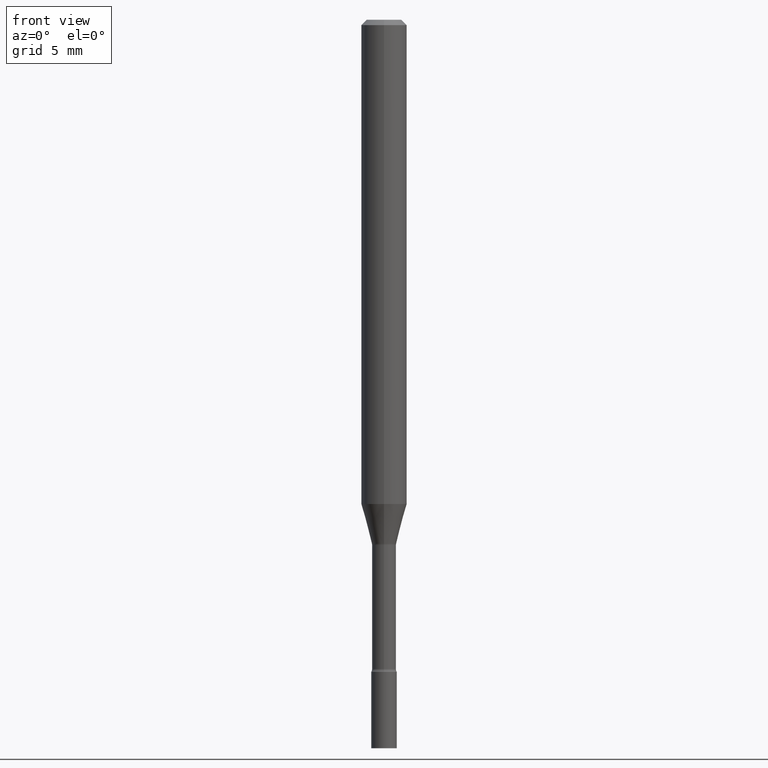
[diagram: clean part render]
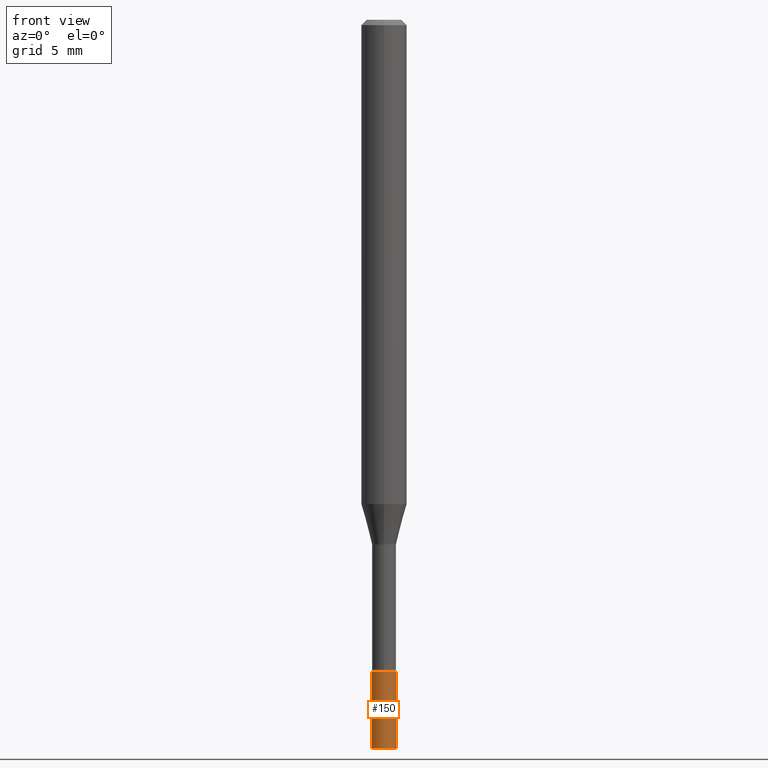
[diagram: same view with one face highlighted and labeled with its STEP entity id]
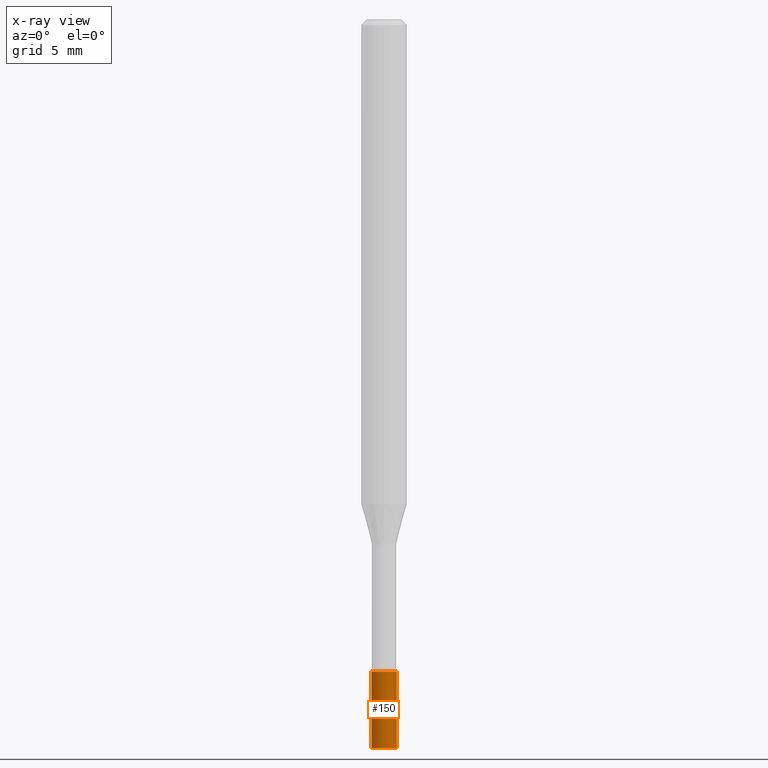
[diagram: x-ray of the same camera — body ghosted, the highlighted face saturated]
A machine part, front view. The second image highlights one B-rep face of the part: STEP entity #150.
The next image is the same camera in x-ray: the body ghosted, the highlighted face saturated — about 0% of this face is hidden behind the body in this view.
In plain terms, the highlighted cylindrical surface (edge-blend (fillet) strip) has radius 0.889 mm, axis along (-0, 0, 1).
Its self-contained STEP definition (entity closure, byte-faithful):
#19 = EDGE_LOOP ( 'NONE', ( #506, #467, #296, #458 ) ) ;
#20 = DIRECTION ( 'NONE',  ( -2.445468806185136597E-29, 3.491481338843145583E-15, 1.000000000000000000 ) ) ;
#32 = DIRECTION ( 'NONE',  ( -2.445468806185136877E-29, 3.491481338843145188E-15, 1.000000000000000000 ) ) ;
#33 = AXIS2_PLACEMENT_3D ( 'NONE', #331, #201, #93 ) ;
#44 = EDGE_CURVE ( 'NONE', #370, #413, #479, .T. ) ;
#59 = CARTESIAN_POINT ( 'NONE',  ( 4.377389163071394665E-29, -6.249751596529231267E-15, -1.790000000000000036 ) ) ;
#62 = VERTEX_POINT ( 'NONE', #405 ) ;
#71 = LINE ( 'NONE', #435, #263 ) ;
#93 = DIRECTION ( 'NONE',  ( 1.000000000000000000, -6.982962677686265922E-15, 4.876176775795936353E-29 ) ) ;
#124 = CARTESIAN_POINT ( 'NONE',  ( 0.03500000000000000333, -2.444036937190193250E-16, 1.706661871528577808E-30 ) ) ;
#143 = DIRECTION ( 'NONE',  ( 1.000000000000000000, -6.982962677686276966E-15, 0.000000000000000000 ) ) ;
#145 = CYLINDRICAL_SURFACE ( 'NONE', #33, 0.03500000000000000333 ) ;
#150 = ADVANCED_FACE ( 'NONE', ( #222 ), #145, .T. ) ;
#182 = CARTESIAN_POINT ( 'NONE',  ( 0.03500000000000000333, -6.494155290248250444E-15, -1.790000000000000036 ) ) ;
#201 = DIRECTION ( 'NONE',  ( -2.445468806185136597E-29, 3.491481338843145583E-15, 1.000000000000000000 ) ) ;
#211 = CARTESIAN_POINT ( 'NONE',  ( 0.03500000000000000333, -7.227366371405310342E-15, -2.000000000000000000 ) ) ;
#222 = FACE_OUTER_BOUND ( 'NONE', #19, .T. ) ;
#225 = AXIS2_PLACEMENT_3D ( 'NONE', #59, #502, #143 ) ;
#243 = DIRECTION ( 'NONE',  ( 1.000000000000000000, -6.982962677686276966E-15, 0.000000000000000000 ) ) ;
#248 = AXIS2_PLACEMENT_3D ( 'NONE', #373, #20, #243 ) ;
#263 = VECTOR ( 'NONE', #32, 39.37007874015748143 ) ;
#273 = CIRCLE ( 'NONE', #225, 0.03500000000000000333 ) ;
#296 = ORIENTED_EDGE ( 'NONE', *, *, #44, .T. ) ;
#317 = EDGE_CURVE ( 'NONE', #62, #413, #273, .T. ) ;
#331 = CARTESIAN_POINT ( 'NONE',  ( 0.000000000000000000, 0.000000000000000000, 0.000000000000000000 ) ) ;
#342 = EDGE_CURVE ( 'NONE', #450, #370, #343, .T. ) ;
#343 = CIRCLE ( 'NONE', #248, 0.03500000000000000333 ) ;
#370 = VERTEX_POINT ( 'NONE', #211 ) ;
#373 = CARTESIAN_POINT ( 'NONE',  ( 4.890937612370273194E-29, -6.982962677686291165E-15, -2.000000000000000000 ) ) ;
#405 = CARTESIAN_POINT ( 'NONE',  ( -0.03500000000000000333, -6.367667179591725930E-15, -1.790000000000000036 ) ) ;
#413 = VERTEX_POINT ( 'NONE', #182 ) ;
#435 = CARTESIAN_POINT ( 'NONE',  ( -0.03500000000000000333, 2.486899575160350887E-16, -1.721627281589217108E-30 ) ) ;
#438 = DIRECTION ( 'NONE',  ( -2.445468806185136877E-29, 3.491481338843145188E-15, 1.000000000000000000 ) ) ;
#450 = VERTEX_POINT ( 'NONE', #513 ) ;
#458 = ORIENTED_EDGE ( 'NONE', *, *, #317, .F. ) ;
#467 = ORIENTED_EDGE ( 'NONE', *, *, #342, .T. ) ;
#470 = EDGE_CURVE ( 'NONE', #450, #62, #71, .T. ) ;
#479 = LINE ( 'NONE', #124, #481 ) ;
#481 = VECTOR ( 'NONE', #438, 39.37007874015748143 ) ;
#502 = DIRECTION ( 'NONE',  ( -2.445468806185136597E-29, 3.491481338843145583E-15, 1.000000000000000000 ) ) ;
#506 = ORIENTED_EDGE ( 'NONE', *, *, #470, .F. ) ;
#513 = CARTESIAN_POINT ( 'NONE',  ( -0.03500000000000000333, -6.367667179591725930E-15, -2.000000000000000000 ) ) ;